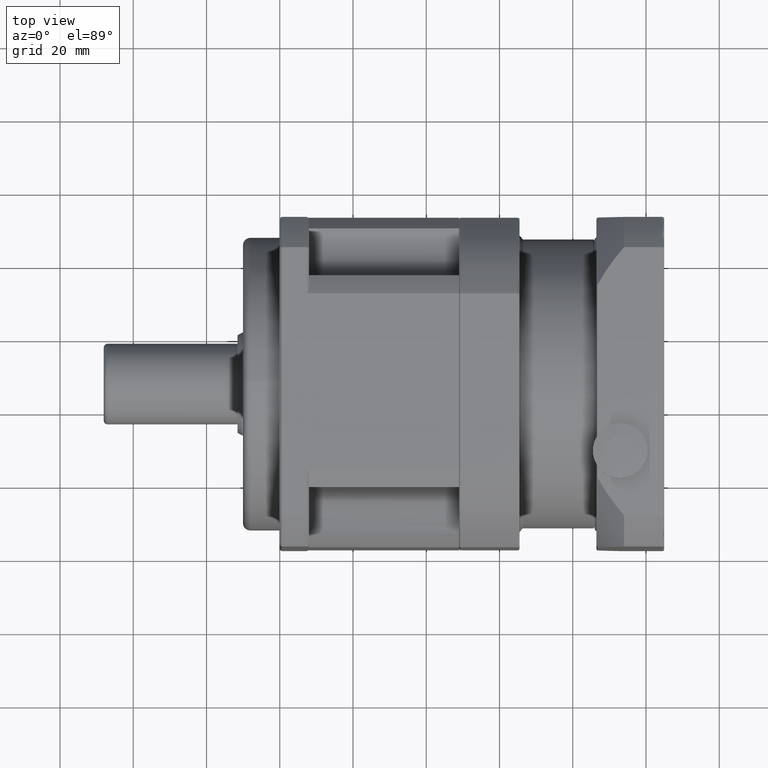
[diagram: clean part render]
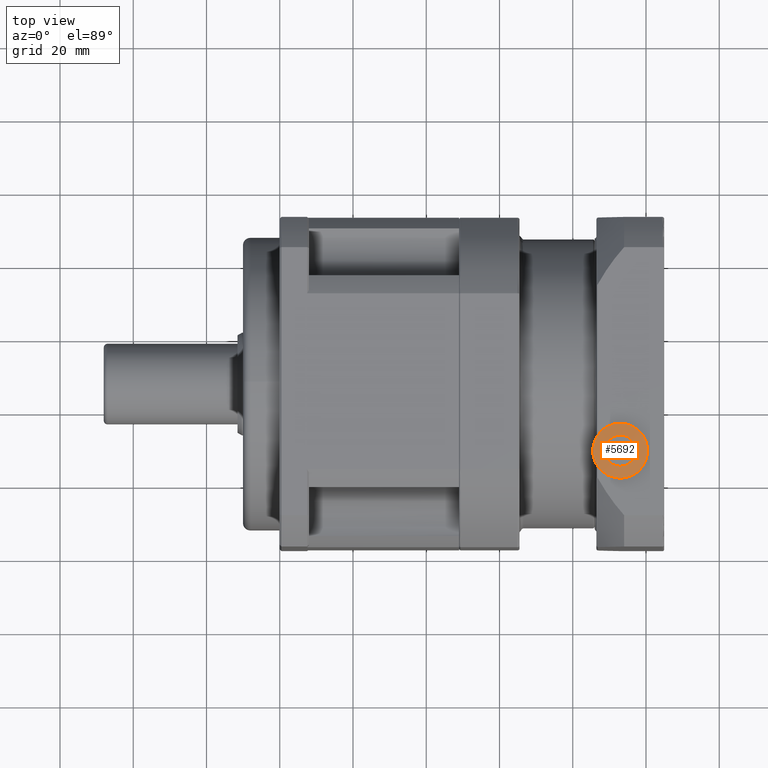
[diagram: same view with one face highlighted and labeled with its STEP entity id]
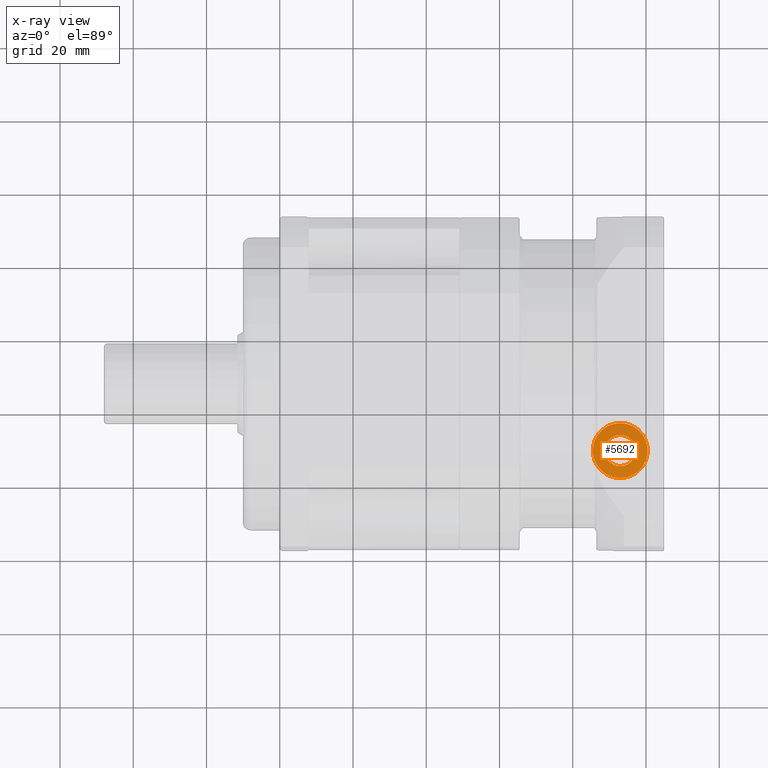
[diagram: x-ray of the same camera — body ghosted, the highlighted face saturated]
A machine part, top view. The second image highlights one B-rep face of the part: STEP entity #5692.
The next image is the same camera in x-ray: the body ghosted, the highlighted face saturated — about 0% of this face is hidden behind the body in this view.
In plain terms, the highlighted conical surface has half-angle 84.726 deg.
Its self-contained STEP definition (entity closure, byte-faithful):
#699=CONICAL_SURFACE('',#6134,5.875,84.7261040426483);
#996=FACE_BOUND('',#1629,.T.);
#1208=FACE_OUTER_BOUND('',#1628,.T.);
#1628=EDGE_LOOP('',(#3920));
#1629=EDGE_LOOP('',(#3921));
#2146=CIRCLE('',#6133,4.25);
#2147=CIRCLE('',#6135,7.5);
#2528=VERTEX_POINT('',#8793);
#2529=VERTEX_POINT('',#8796);
#3084=EDGE_CURVE('',#2528,#2528,#2146,.T.);
#3085=EDGE_CURVE('',#2529,#2529,#2147,.T.);
#3920=ORIENTED_EDGE('',*,*,#3084,.T.);
#3921=ORIENTED_EDGE('',*,*,#3085,.F.);
#5692=ADVANCED_FACE('',(#1208,#996),#699,.T.);
#6133=AXIS2_PLACEMENT_3D('',#8794,#7008,#7009);
#6134=AXIS2_PLACEMENT_3D('',#8795,#7010,#7011);
#6135=AXIS2_PLACEMENT_3D('',#8797,#7012,#7013);
#7008=DIRECTION('center_axis',(-3.16344579001232E-15,7.33754210262722E-16,
-1.));
#7009=DIRECTION('ref_axis',(-1.,-2.63857267932601E-16,3.16344579001232E-15));
#7010=DIRECTION('center_axis',(-3.16344579001232E-15,7.33754210262722E-16,
-1.));
#7011=DIRECTION('ref_axis',(-2.63857267932599E-16,1.,7.38826009647953E-16));
#7012=DIRECTION('center_axis',(-3.16344579001232E-15,7.33754210262722E-16,
-1.));
#7013=DIRECTION('ref_axis',(-1.,-2.63857267932601E-16,3.16344579001232E-15));
#8793=CARTESIAN_POINT('',(32.9702896556818,-47.1433275789241,57.3503877548294));
#8794=CARTESIAN_POINT('Origin',(32.9702896556818,-51.3933275789241,57.3503877548294));
#8795=CARTESIAN_POINT('Origin',(32.9702896556818,-51.3933275789241,57.2003877548294));
#8796=CARTESIAN_POINT('',(32.9702896556818,-43.8933275789241,57.0503877548294));
#8797=CARTESIAN_POINT('Origin',(32.9702896556818,-51.3933275789241,57.0503877548294));